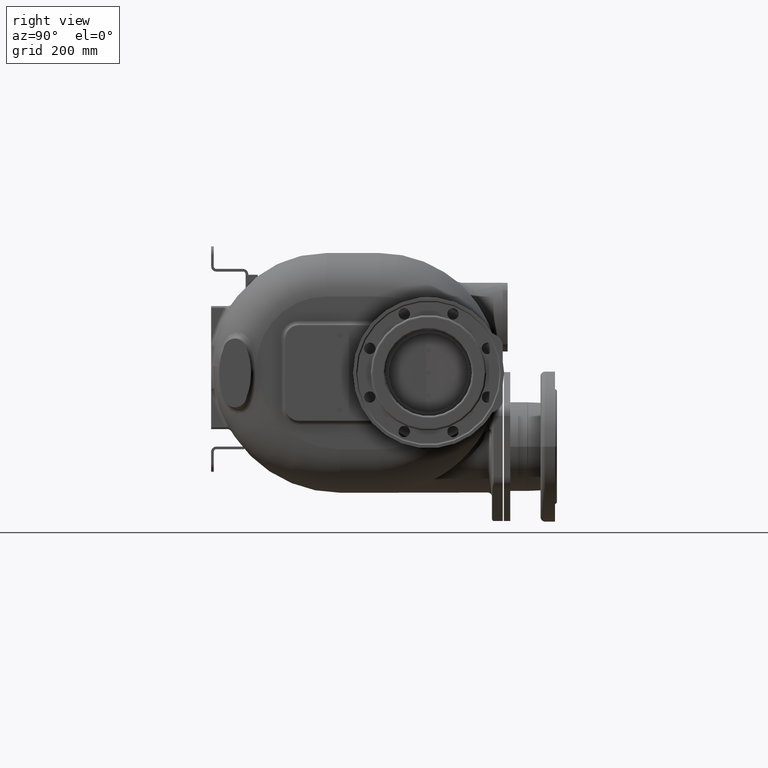
[diagram: clean part render]
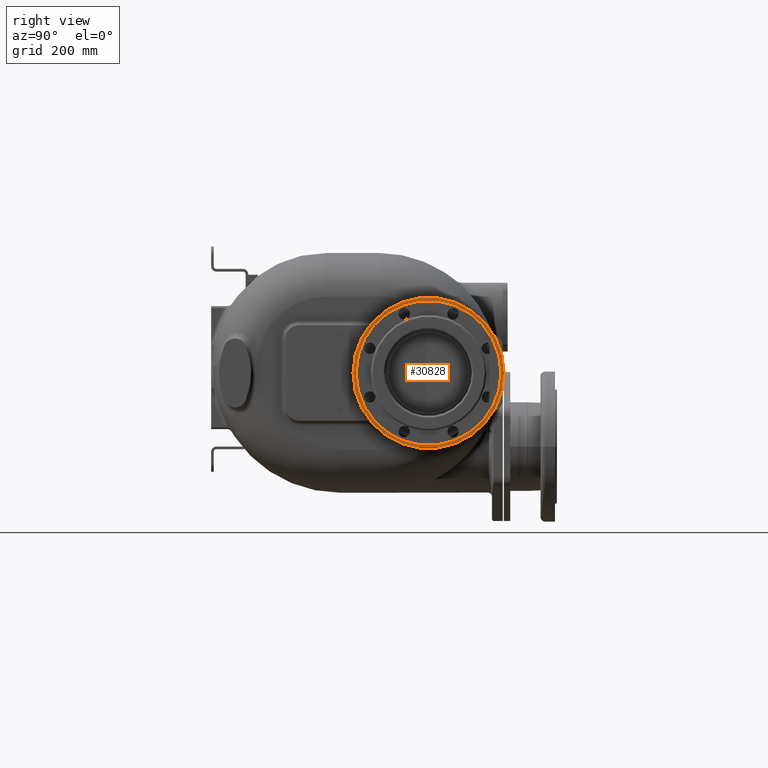
[diagram: same view with one face highlighted and labeled with its STEP entity id]
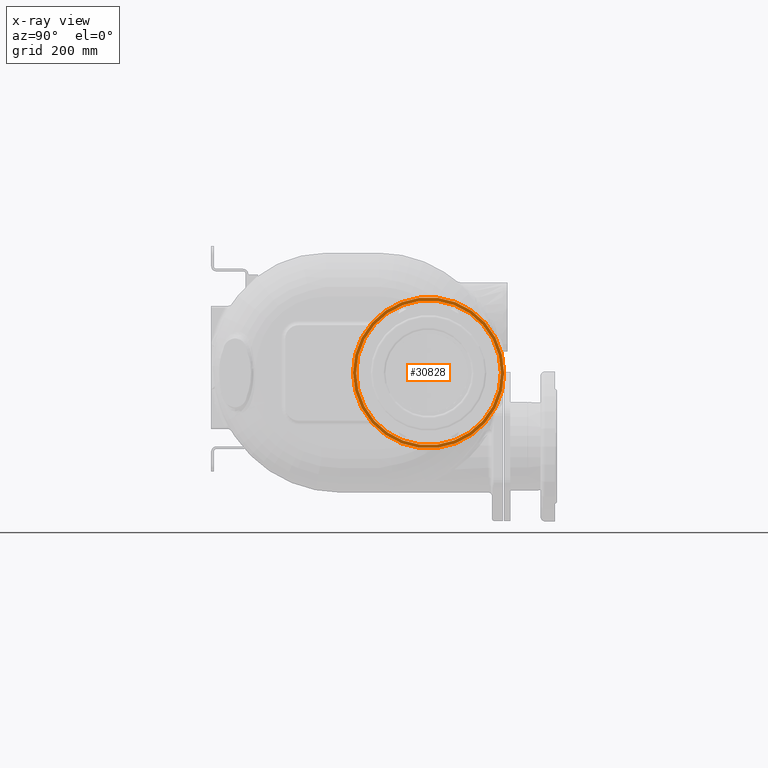
[diagram: x-ray of the same camera — body ghosted, the highlighted face saturated]
A machine part, right view. The second image highlights one B-rep face of the part: STEP entity #30828.
The next image is the same camera in x-ray: the body ghosted, the highlighted face saturated — about 0% of this face is hidden behind the body in this view.
In plain terms, the highlighted planar face has unit normal (1, 0, 0).
Its self-contained STEP definition (entity closure, byte-faithful):
#30030=CARTESIAN_POINT('',(3.72E2,4.1E2,-2.6E1));
#30031=DIRECTION('',(-1.E0,0.E0,0.E0));
#30032=DIRECTION('',(0.E0,-1.E0,0.E0));
#30033=AXIS2_PLACEMENT_3D('',#30030,#30031,#30032);
#30035=CARTESIAN_POINT('',(3.72E2,4.1E2,-2.6E1));
#30036=DIRECTION('',(1.E0,0.E0,0.E0));
#30037=DIRECTION('',(0.E0,-1.E0,0.E0));
#30038=AXIS2_PLACEMENT_3D('',#30035,#30036,#30037);
#30040=CARTESIAN_POINT('',(3.72E2,4.1E2,-2.6E1));
#30041=DIRECTION('',(1.E0,0.E0,0.E0));
#30042=DIRECTION('',(0.E0,-1.E0,0.E0));
#30043=AXIS2_PLACEMENT_3D('',#30040,#30041,#30042);
#30053=CARTESIAN_POINT('',(3.72E2,4.1E2,-2.6E1));
#30054=DIRECTION('',(-1.E0,0.E0,0.E0));
#30055=DIRECTION('',(0.E0,-1.E0,0.E0));
#30056=AXIS2_PLACEMENT_3D('',#30053,#30054,#30055);
#30556=CARTESIAN_POINT('',(3.72E2,2.735E2,-2.6E1));
#30557=VERTEX_POINT('',#30556);
#30558=CARTESIAN_POINT('',(3.72E2,2.675E2,-2.6E1));
#30560=VERTEX_POINT('',#30558);
#30576=CARTESIAN_POINT('',(3.72E2,5.465E2,-2.6E1));
#30577=VERTEX_POINT('',#30576);
#30578=CARTESIAN_POINT('',(3.72E2,5.525E2,-2.6E1));
#30580=VERTEX_POINT('',#30578);
#30813=CARTESIAN_POINT('',(3.72E2,4.1E2,-2.6E1));
#30814=DIRECTION('',(1.E0,0.E0,0.E0));
#30815=DIRECTION('',(0.E0,1.E0,0.E0));
#30816=AXIS2_PLACEMENT_3D('',#30813,#30814,#30815);
#30817=PLANE('',#30816);
#30819=ORIENTED_EDGE('',*,*,#30818,.F.);
#30821=ORIENTED_EDGE('',*,*,#30820,.T.);
#30822=EDGE_LOOP('',(#30819,#30821));
#30823=FACE_OUTER_BOUND('',#30822,.F.);
#30824=ORIENTED_EDGE('',*,*,#30792,.F.);
#30825=ORIENTED_EDGE('',*,*,#30808,.T.);
#30826=EDGE_LOOP('',(#30824,#30825));
#30827=FACE_BOUND('',#30826,.F.);
#30828=ADVANCED_FACE('',(#30823,#30827),#30817,.T.);
#30034=CIRCLE('',#30033,1.365E2);
#30039=CIRCLE('',#30038,1.365E2);
#30044=CIRCLE('',#30043,1.425E2);
#30057=CIRCLE('',#30056,1.425E2);
#30792=EDGE_CURVE('',#30557,#30577,#30034,.T.);
#30808=EDGE_CURVE('',#30557,#30577,#30039,.T.);
#30818=EDGE_CURVE('',#30560,#30580,#30044,.T.);
#30820=EDGE_CURVE('',#30560,#30580,#30057,.T.);